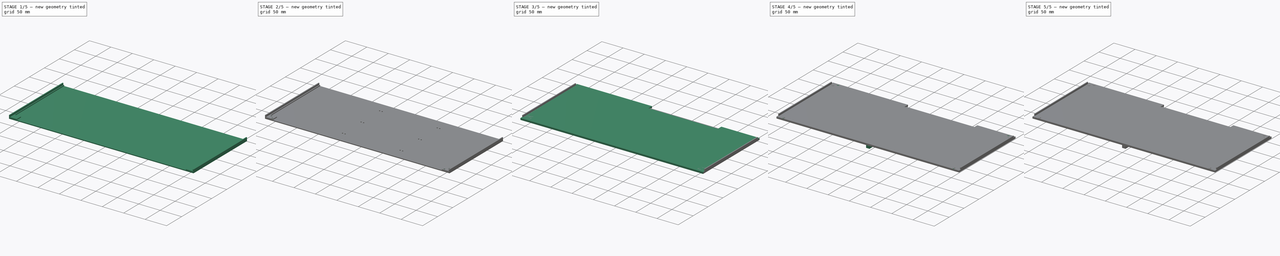
[diagram: build sequence overview — one tinted view per stage of 5, left to right]
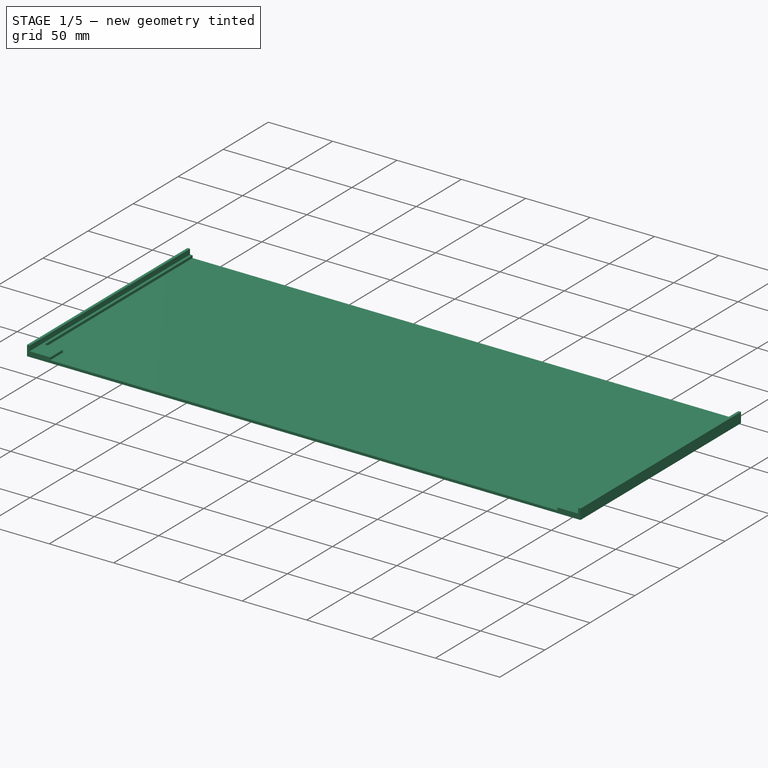
[diagram: stage 1 of 5 — iso view after this stage's code; geometry added in this stage tinted green]
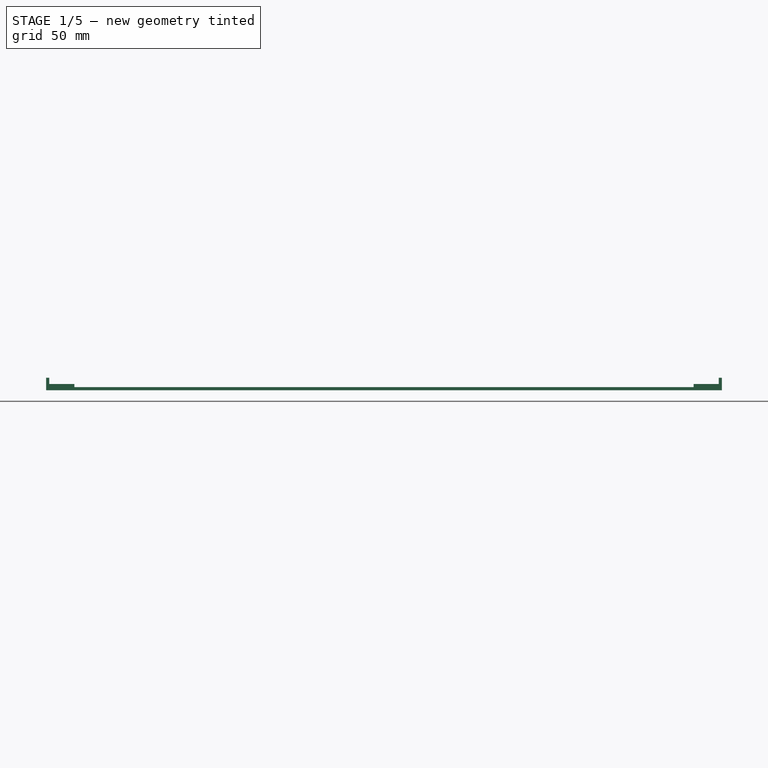
[diagram: stage 1 of 5 — front view after this stage's code; geometry added in this stage tinted green]
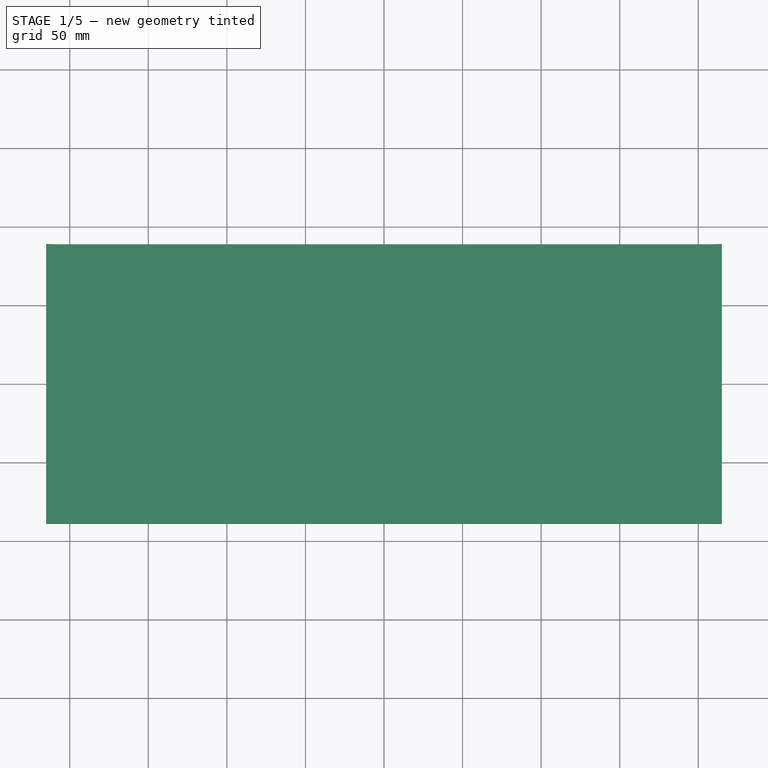
[diagram: stage 1 of 5 — top view after this stage's code; geometry added in this stage tinted green]
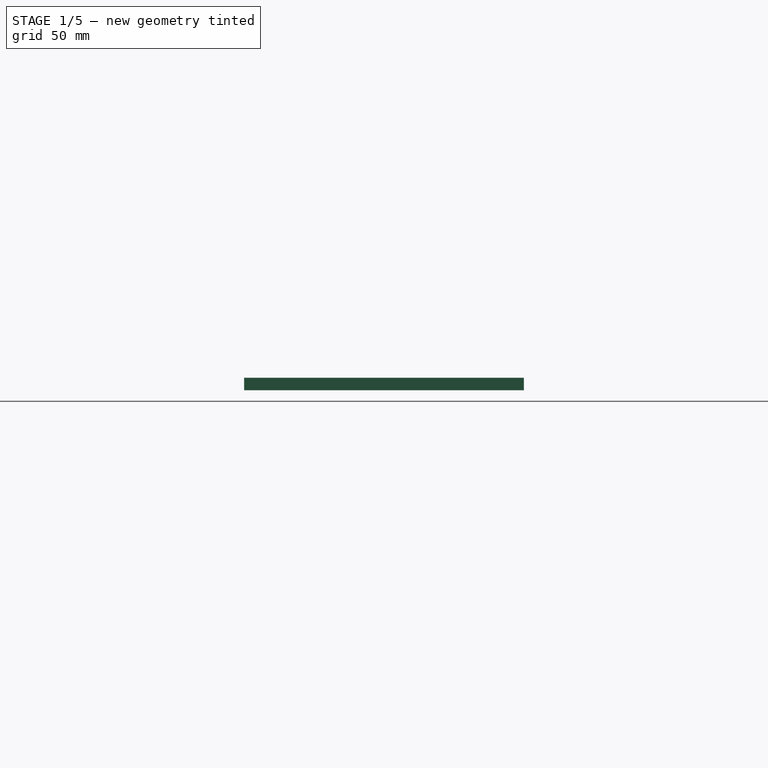
[diagram: stage 1 of 5 — right view after this stage's code; geometry added in this stage tinted green]
FCSTD DOCUMENT  (FreeCAD 1.0R39109 (Git))
Label: top
License: All rights reserved
LicenseURL: https://en.wikipedia.org/wiki/All_rights_reserved
objects: Sketcher::SketchObject×11, Part::FeaturePython×7, PartDesign::Pad×4, PartDesign::Hole×4, PartDesign::Body×2, Part::Extrusion×2, App::DocumentObjectGroup×2, PartDesign::Pocket×1
note: 60 computed .brp shape members not serialized (recipe doc carries the construction recipe); baked Part::Feature solids carry a one-line shape summary decoded from their .brp
EXTERNAL_REF file=case.FCStd obj=Spreadsheet

FEATURE [App::DocumentObjectGroup] GrExplode_Slice  label="Exploded Slice"
  Group = -> [Slice_child0,Slice_child1]
FEATURE [Sketcher::SketchObject] Sketch031
  ArcFitTolerance = 1e-06
  AttachmentSupport = -> [XY_Plane003]
  FullyConstrained = true
  MakeInternals = false
  MapMode = 5
  expr: Constraints[8] = case#Spreadsheet.width
  expr: Constraints[9] = 181 mm - case#Spreadsheet.front_wall_thickness
  sketch-geometry (4):
    g0: LineSegment StartX=-215 StartY=89 StartZ=0 EndX=-215 EndY=-89 EndZ=0
    g1: LineSegment StartX=-215 StartY=-89 StartZ=0 EndX=215 EndY=-89 EndZ=0
    g2: LineSegment StartX=215 StartY=-89 StartZ=0 EndX=215 EndY=89 EndZ=0
    g3: LineSegment StartX=215 StartY=89 StartZ=0 EndX=-215 EndY=89 EndZ=0
  constraints (11):
    c: Coincident(g0,g1)
    c: Coincident(g1,g2)
    c: Coincident(g2,g3)
    c: Coincident(g3,g0)
    c: Vertical(g0)
    c: Vertical(g2)
    c: Horizontal(g1)
    c: Horizontal(g3)
    c: DistanceX(g3,g3) = 430
    c: DistanceY(g0,g0) = 178
    c: Symmetric(g2,g0,g-1)
FEATURE [PartDesign::Pad] Pad015
  Direction = (0,0,1)
  Length = 4
  Length2 = 10
  Profile = -> Sketch031
  ReferenceAxis = -> Sketch031 [N_Axis]
  Refine = true
  Suppressed = false
  Type = 0
FEATURE [Sketcher::SketchObject] Sketch032
  ArcFitTolerance = 1e-06
  AttachmentSupport = -> [Pad015]
  ExternalGeometry = -> [Pad015]
  FullyConstrained = true
  MakeInternals = false
  MapMode = 5
  Placement = pos=(0,0,4) rot=(0,0,1;0rad)
  sketch-geometry (8):
    g0: LineSegment StartX=-215 StartY=89 StartZ=0 EndX=-215 EndY=-89 EndZ=0
    g1: LineSegment StartX=-215 StartY=-89 StartZ=0 EndX=-213 EndY=-89 EndZ=0
    g2: LineSegment StartX=-213 StartY=-89 StartZ=0 EndX=-213 EndY=89 EndZ=0
    g3: LineSegment StartX=-213 StartY=89 StartZ=0 EndX=-215 EndY=89 EndZ=0
    g4: LineSegment StartX=215 StartY=89 StartZ=0 EndX=213 EndY=89 EndZ=0
    g5: LineSegment StartX=213 StartY=89 StartZ=0 EndX=213 EndY=-89 EndZ=0
    g6: LineSegment StartX=213 StartY=-89 StartZ=0 EndX=215 EndY=-89 EndZ=0
    g7: LineSegment StartX=215 StartY=-89 StartZ=0 EndX=215 EndY=89 EndZ=0
  constraints (20):
    c: Coincident(g0,g1)
    c: Coincident(g1,g2)
    c: Coincident(g2,g3)
    c: Coincident(g3,g0)
    c: Vertical(g2)
    c: Horizontal(g1)
    c: Horizontal(g3)
    c: Coincident(g0,g-3)
    c: Coincident(g4,g5)
    c: Coincident(g5,g6)
    c: Coincident(g6,g7)
    c: Coincident(g7,g4)
    c: Horizontal(g4)
    c: Horizontal(g6)
    c: Vertical(g5)
    c: Coincident(g4,g-4)
    c: Coincident(g6,g-4)
    c: Coincident(g0,g-3)
    c: DistanceX(g1,g1) = 2
    c: DistanceX(g6,g6) = 2
FEATURE [PartDesign::Pad] Pad016
  BaseFeature = -> Pad015
  Direction = (0,0,1)
  Length = 4
  Length2 = 10
  Profile = -> Sketch032
  ReferenceAxis = -> Sketch032 [N_Axis]
  Refine = true
  Suppressed = false
  Type = 0
FEATURE [Sketcher::SketchObject] Sketch033
  ArcFitTolerance = 1e-06
  AttachmentSupport = -> [Pad016]
  ExternalGeometry = -> [Pad016]
  FullyConstrained = true
  MakeInternals = false
  MapMode = 5
  Placement = pos=(0,0,4) rot=(0,0,1;0rad)
  sketch-geometry (8):
    g0: LineSegment StartX=211 StartY=89 StartZ=0 EndX=-211 EndY=89 EndZ=0
    g1: LineSegment StartX=-211 StartY=89 StartZ=0 EndX=-211 EndY=-75 EndZ=0
    g2: LineSegment StartX=-197 StartY=-89 StartZ=0 EndX=197 EndY=-89 EndZ=0
    g3: LineSegment StartX=211 StartY=-75 StartZ=0 EndX=211 EndY=89 EndZ=0
    g4: LineSegment StartX=211 StartY=-75 StartZ=0 EndX=197 EndY=-75 EndZ=0
    g5: LineSegment StartX=197 StartY=-75 StartZ=0 EndX=197 EndY=-89 EndZ=0
    g6: LineSegment StartX=-211 StartY=-75 StartZ=0 EndX=-197 EndY=-75 EndZ=0
    g7: LineSegment StartX=-197 StartY=-75 StartZ=0 EndX=-197 EndY=-89 EndZ=0
  constraints (24):
    c: Coincident(g0,g1)
    c: Coincident(g3,g0)
    c: Horizontal(g0)
    c: Horizontal(g2)
    c: Vertical(g1)
    c: Vertical(g3)
    c: PointOnObject(g0,g-6)
    c: Horizontal(g4)
    c: Coincident(g4,g5)
    c: Vertical(g5)
    c: Horizontal(g6)
    c: Coincident(g6,g7)
    c: Vertical(g7)
    c: Equal(g4,g5)
    c: Equal(g5,g6)
    c: Equal(g6,g7)
    c: DistanceY(g7,g7) = 14
    c: Coincident(g2,g7)
    c: Coincident(g1,g6)
    c: Coincident(g2,g5)
    c: Coincident(g3,g4)
    c: PointOnObject(g2,g-5)
    c: DistanceX(g-6,g0) = 2
    c: DistanceX(g0,g-6) = 2
FEATURE [PartDesign::Pocket] Pocket004
  BaseFeature = -> Pad016
  Direction = (0,0,-1)
  Length = 2
  Length2 = 5
  Profile = -> Sketch033
  ReferenceAxis = -> Sketch033 [N_Axis]
  Refine = true
  Suppressed = false
  Type = 0
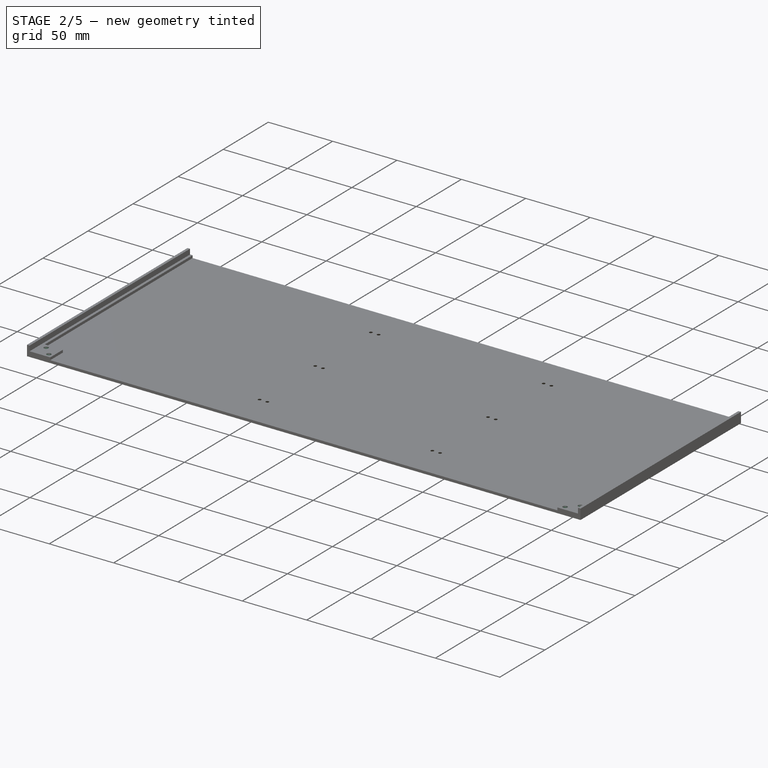
[diagram: stage 2 of 5 — iso view after this stage's code; geometry added in this stage tinted green]
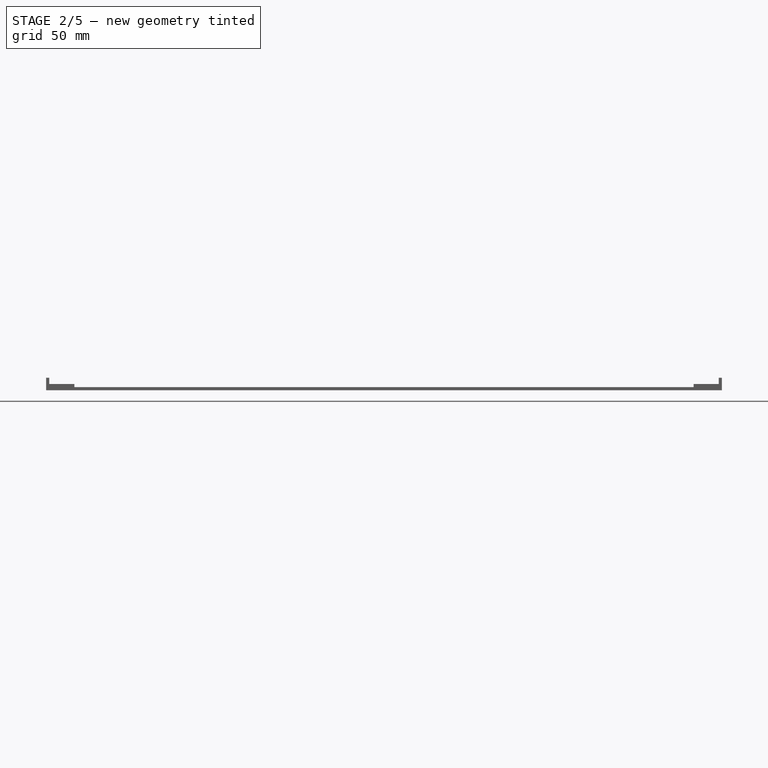
[diagram: stage 2 of 5 — front view after this stage's code; geometry added in this stage tinted green]
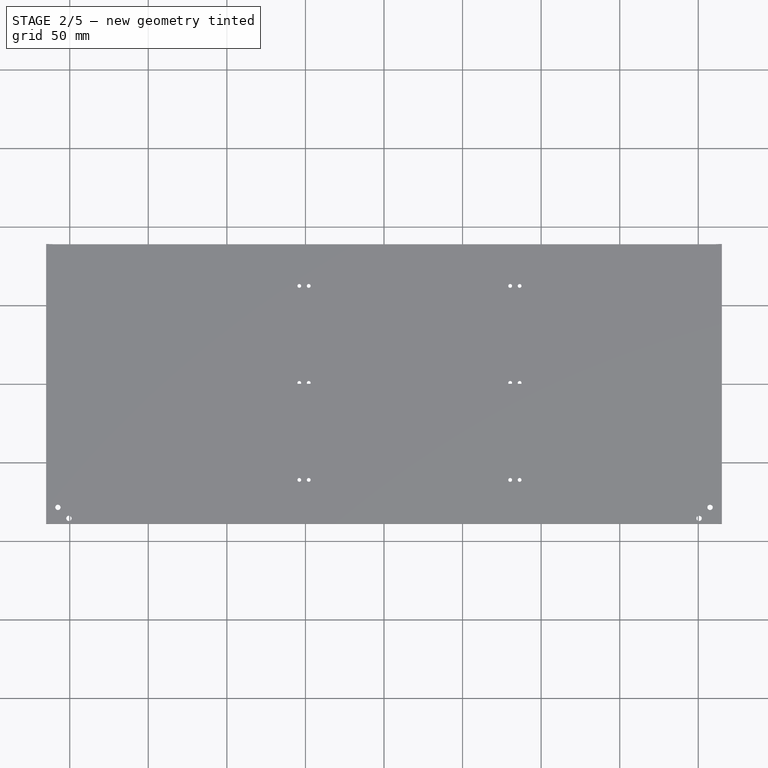
[diagram: stage 2 of 5 — top view after this stage's code; geometry added in this stage tinted green]
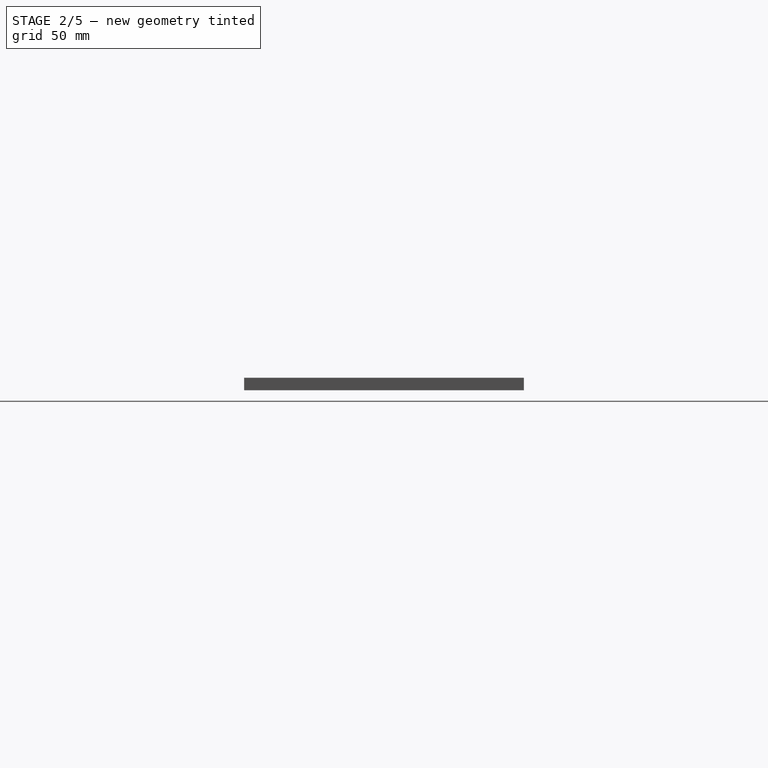
[diagram: stage 2 of 5 — right view after this stage's code; geometry added in this stage tinted green]
FEATURE [Sketcher::SketchObject] Sketch034
  ArcFitTolerance = 1e-06
  AttachmentSupport = -> [Pocket004]
  ExternalGeometry = -> [Pocket004]
  FullyConstrained = true
  MakeInternals = false
  MapMode = 5
  Placement = pos=(0,0,0) rot=(1,0,0;3.14159rad)
  sketch-geometry (14):
    g0: Circle CenterX=86.3 CenterY=-62.45 CenterZ=0 NormalX=0 NormalY=0 NormalZ=1 AngleXU=0 Radius=1
    g1: Circle CenterX=80.3 CenterY=-62.45 CenterZ=0 NormalX=0 NormalY=0 NormalZ=1 AngleXU=0 Radius=1
    g2: Circle CenterX=86.3 CenterY=-0.72 CenterZ=0 NormalX=0 NormalY=0 NormalZ=1 AngleXU=0 Radius=1
    g3: Circle CenterX=80.3 CenterY=-0.72 CenterZ=0 NormalX=0 NormalY=0 NormalZ=1 AngleXU=0 Radius=1
    g4: Circle CenterX=86.3 CenterY=61.01 CenterZ=0 NormalX=0 NormalY=0 NormalZ=1 AngleXU=0 Radius=1
    g5: Circle CenterX=80.3 CenterY=61.01 CenterZ=0 NormalX=0 NormalY=0 NormalZ=1 AngleXU=0 Radius=1
    g6: Circle CenterX=-47.9 CenterY=61.01 CenterZ=0 NormalX=0 NormalY=0 NormalZ=1 AngleXU=0 Radius=1
    g7: Circle CenterX=-53.9 CenterY=61.01 CenterZ=0 NormalX=0 NormalY=0 NormalZ=1 AngleXU=0 Radius=1
    g8: Circle CenterX=-47.9 CenterY=-0.72 CenterZ=0 NormalX=0 NormalY=0 NormalZ=1 AngleXU=0 Radius=1
    g9: Circle CenterX=-53.9 CenterY=-0.72 CenterZ=0 NormalX=0 NormalY=0 NormalZ=1 AngleXU=0 Radius=1
    g10: Circle CenterX=-47.9 CenterY=-62.45 CenterZ=0 NormalX=0 NormalY=0 NormalZ=1 AngleXU=0 Radius=1
    g11: Circle CenterX=-53.9 CenterY=-62.45 CenterZ=0 NormalX=0 NormalY=0 NormalZ=1 AngleXU=0 Radius=1
    g12: GeomPoint [constr] X=83.3 Y=61.01 Z=0
    g13: GeomPoint [constr] X=-50.9 Y=61.01 Z=0
  constraints (38):
    c: Equal(g0,g1)
    c: Equal(g1,g10)
    c: Equal(g10,g11)
    c: Equal(g11,g8)
    c: Equal(g8,g9)
    c: Equal(g9,g6)
    c: Equal(g6,g7)
    c: Equal(g7,g5)
    c: Equal(g5,g4)
    c: Equal(g4,g2)
    c: Equal(g2,g3)
    c: Diameter(g9) = 2
    c: Horizontal(g0,g1)
    c: Horizontal(g1,g10)
    c: Horizontal(g10,g11)
    c: Horizontal(g2,g3)
    c: Horizontal(g3,g8)
    c: Horizontal(g8,g9)
    c: Horizontal(g6,g7)
    c: Horizontal(g7,g5)
    c: Horizontal(g5,g4)
    c: Vertical(g0,g2)
    c: Vertical(g2,g4)
    c: Vertical(g5,g3)
    c: Vertical(g3,g1)
    c: Vertical(g10,g8)
    c: Vertical(g8,g6)
    c: Vertical(g7,g9)
    c: Vertical(g9,g11)
    c: Distance(g1,g-3) = 26.55
    c: DistanceX(g5,g4) = 6
    c: DistanceX(g7,g6) = 6
    c: DistanceY(g0,g2) = 61.73
    c: DistanceY(g2,g4) = 61.73
    c: DistanceX(g13,g12) = 134.2
    c: Symmetric(g4,g5,g12)
    c: Symmetric(g6,g7,g13)
    c: Distance(g12,g-4) = 131.7
FEATURE [PartDesign::Hole] Hole
  BaseFeature = -> Pocket004
  CustomThreadClearance = 0
  Depth = 25
  DepthType = 0
  Diameter = 2.4
  DrillForDepth = false
  DrillPoint = 0
  DrillPointAngle = 118
  HoleCutCountersinkAngle = 90
  HoleCutCustomValues = false
  HoleCutDepth = 0
  HoleCutDiameter = 6.1
  HoleCutType = 2
  ModelThread = false
  Profile = -> Sketch034
  Refine = true
  Suppressed = false
  Tapered = false
  TaperedAngle = 90
  ThreadClass = 0
  ThreadDepth = 25
  ThreadDepthType = 0
  ThreadDirection = 0
  ThreadFit = 0
  ThreadSize = 6
  ThreadType = 1
  Threaded = false
  UseCustomThreadClearance = false
FEATURE [Sketcher::SketchObject] Sketch035
  ArcFitTolerance = 1e-06
  AttachmentSupport = -> [Hole]
  ExternalGeometry = -> [Hole]
  FullyConstrained = true
  MakeInternals = false
  MapMode = 5
  Placement = pos=(0,0,0) rot=(1,0,0;3.14159rad)
  sketch-geometry (4):
    g0: Circle CenterX=-200.5 CenterY=85.5 CenterZ=0 NormalX=0 NormalY=0 NormalZ=1 AngleXU=0 Radius=1.5
    g1: Circle CenterX=-207.5 CenterY=78.5 CenterZ=0 NormalX=0 NormalY=0 NormalZ=1 AngleXU=0 Radius=1.5
    g2: Circle CenterX=200.5 CenterY=85.5 CenterZ=0 NormalX=0 NormalY=0 NormalZ=1 AngleXU=0 Radius=1.5
    g3: Circle CenterX=207.5 CenterY=78.5 CenterZ=0 NormalX=0 NormalY=0 NormalZ=1 AngleXU=0 Radius=1.5
  constraints (12):
    c: Diameter(g0) = 3
    c: Distance(g0,g-3) = 3.5
    c: DistanceX(g-4,g0) = 14.5
    c: Distance(g1,g-4) = 7.5
    c: DistanceY(g1,g-4) = 10.5
    c: Equal(g3,g2)
    c: Equal(g2,g0)
    c: Equal(g0,g1)
    c: Distance(g3,g-5) = 7.5
    c: DistanceY(g3,g-5) = 10.5
    c: DistanceX(g2,g-5) = 14.5
    c: DistanceY(g2,g-5) = 3.5
FEATURE [PartDesign::Hole] Hole006
  BaseFeature = -> Hole
  CustomThreadClearance = 0
  Depth = 25
  DepthType = 0
  Diameter = 3.4
  DrillForDepth = false
  DrillPoint = 0
  DrillPointAngle = 118
  HoleCutCountersinkAngle = 90
  HoleCutCustomValues = false
  HoleCutDepth = 0
  HoleCutDiameter = 6.1
  HoleCutType = 2
  ModelThread = false
  Profile = -> Sketch035
  Refine = true
  Suppressed = false
  Tapered = false
  TaperedAngle = 90
  ThreadClass = 0
  ThreadDepth = 25
  ThreadDepthType = 0
  ThreadDirection = 0
  ThreadFit = 0
  ThreadSize = 9
  ThreadType = 1
  Threaded = false
  UseCustomThreadClearance = false
FEATURE [Sketcher::SketchObject] Sketch036
  ArcFitTolerance = 1e-06
  AttachmentSupport = -> [Hole006]
  ExternalGeometry = -> [Hole006]
  FullyConstrained = false
  MakeInternals = false
  MapMode = 5
  Placement = pos=(0,0,0) rot=(1,0,0;3.14159rad)
  sketch-geometry (5):
    g0: GeomPoint [constr] X=83.3 Y=-0.72 Z=0
    g1: GeomPoint [constr] X=-50.9 Y=-0.72 Z=0
    g2: LineSegment StartX=-50.9 StartY=109.298 StartZ=0 EndX=-50.9 EndY=-142.569 EndZ=0
    g3: LineSegment StartX=-50.9 StartY=-142.569 StartZ=0 EndX=83.3 EndY=-142.569 EndZ=0
    g4: LineSegment StartX=83.3 StartY=-142.569 StartZ=0 EndX=83.3 EndY=113.859 EndZ=0
  constraints (9):
    c: Symmetric(g-5,g-6,g0)
    c: Symmetric(g-4,g-3,g1)
    c: Vertical(g2)
    c: Coincident(g2,g3)
    c: Horizontal(g3)
    c: Coincident(g3,g4)
    c: Vertical(g4)
    c: PointOnObject(g0,g4)
    c: PointOnObject(g1,g2)
FEATURE [PartDesign::Body] Body003  label="front"
  AllowCompound = false
  Group = -> [Sketch031,Pad015,Sketch032,Pad016,Sketch033,Pocket004,Sketch034,Hole,Sketch035,Hole006,Sketch036]
  Origin = -> Origin003
  Tip = -> Hole006
FEATURE [Part::Extrusion] Extrude001
  Base = -> Sketch036
  Dir = (0,0,-1)
  DirMode = 2
  FaceMakerClass = Part::FaceMakerBullseye
  FaceMakerMode = 3
  LengthFwd = 10
  LengthRev = 10
  Solid = false
  Symmetric = false
FEATURE [Part::FeaturePython] Slice001  # WARN: FeaturePython — macro-defined, semantics opaque (R4)
  Base = -> Hole006
  Mode = 1
  Tolerance = 0
  Tools = -> [Extrude001]
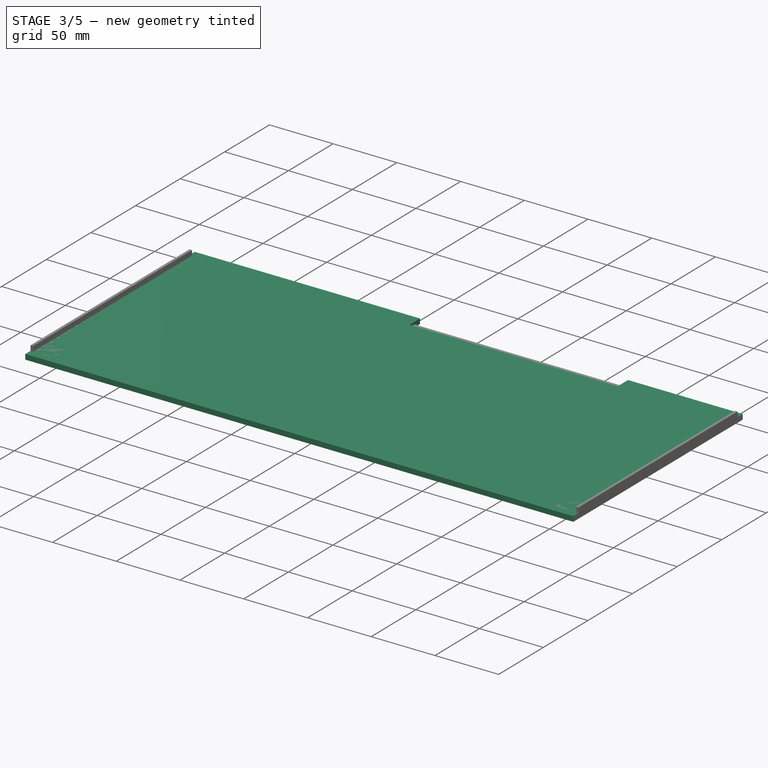
[diagram: stage 3 of 5 — iso view after this stage's code; geometry added in this stage tinted green]
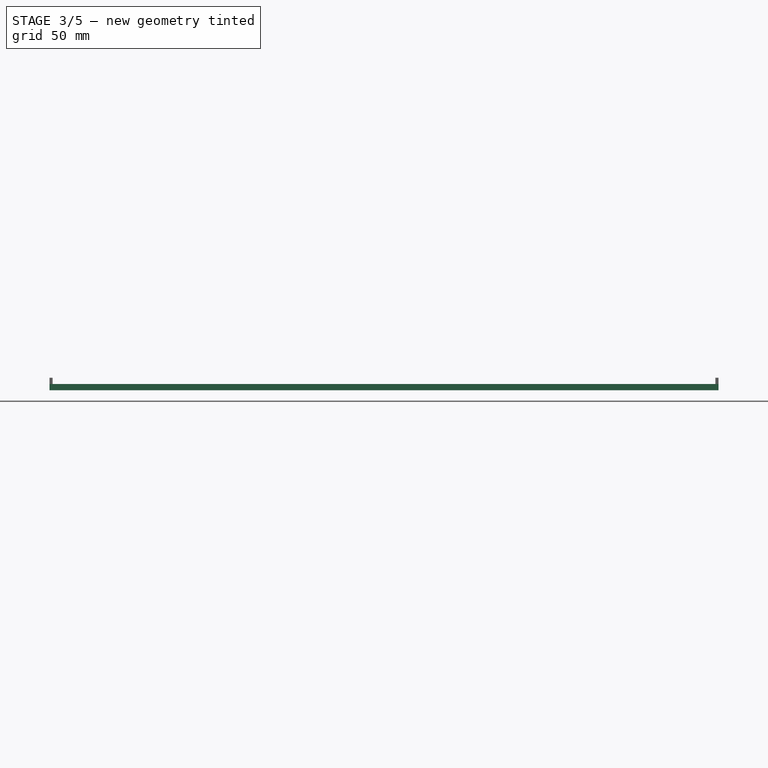
[diagram: stage 3 of 5 — front view after this stage's code; geometry added in this stage tinted green]
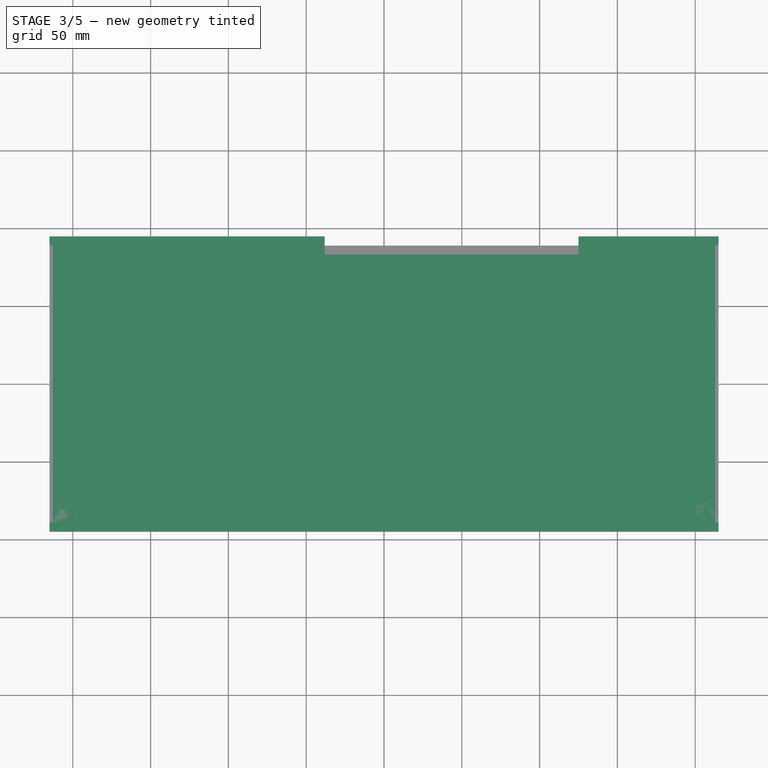
[diagram: stage 3 of 5 — top view after this stage's code; geometry added in this stage tinted green]
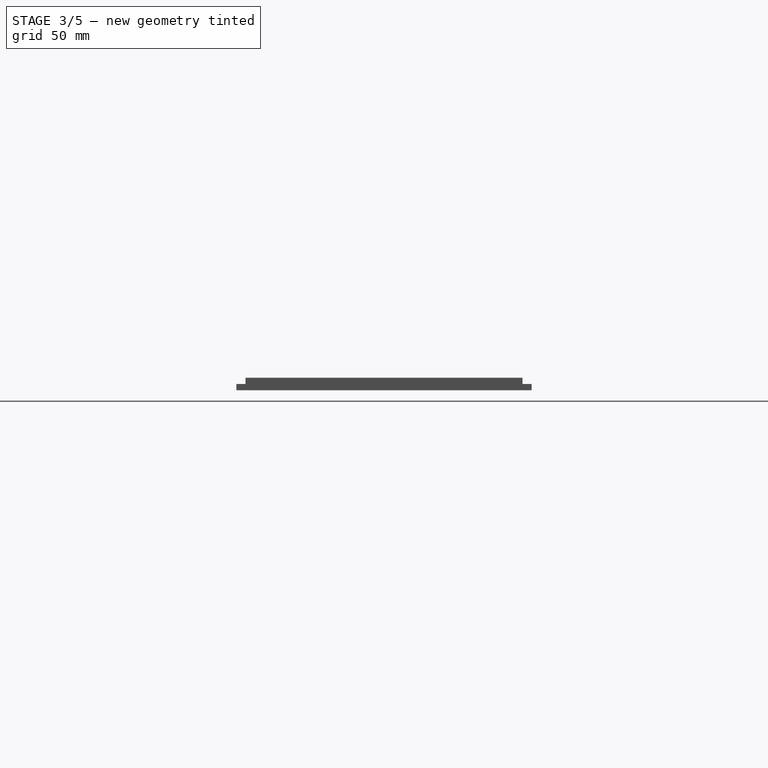
[diagram: stage 3 of 5 — right view after this stage's code; geometry added in this stage tinted green]
FEATURE [Sketcher::SketchObject] Sketch
  ArcFitTolerance = 1e-06
  AttachmentSupport = -> [XY_Plane]
  FullyConstrained = true
  MakeInternals = false
  MapMode = 5
  expr: Constraints[20] = case#Spreadsheet.depth - case#Spreadsheet.wall_thickness - case#Spreadsheet.front_wall_thickness - 178 mm - 0.2 mm
  expr: Constraints[22] = case#Spreadsheet.pcie_tab_depth + 0.2 mm
  expr: Constraints[6] = case#Spreadsheet.width
  sketch-geometry (8):
    g0: LineSegment StartX=-215 StartY=-94.9 StartZ=0 EndX=215 EndY=-94.9 EndZ=0
    g1: LineSegment StartX=215 StartY=-94.9 StartZ=0 EndX=215 EndY=94.9 EndZ=0
    g2: LineSegment StartX=-38.2 StartY=83.27 StartZ=0 EndX=-38.2 EndY=94.9 EndZ=0
    g3: LineSegment StartX=-38.2 StartY=94.9 StartZ=0 EndX=-215 EndY=94.9 EndZ=0
    g4: LineSegment StartX=-215 StartY=94.9 StartZ=0 EndX=-215 EndY=-94.9 EndZ=0
    g5: LineSegment StartX=-38.2 StartY=83.27 StartZ=0 EndX=125 EndY=83.27 EndZ=0
    g6: LineSegment StartX=125 StartY=83.27 StartZ=0 EndX=125 EndY=94.9 EndZ=0
    g7: LineSegment StartX=125 StartY=94.9 StartZ=0 EndX=215 EndY=94.9 EndZ=0
  constraints (23):
    c: Horizontal(g0)
    c: Coincident(g0,g1)
    c: Vertical(g1)
    c: Coincident(g2,g3)
    c: Coincident(g3,g4)
    c: Coincident(g4,g0)
    c: DistanceX(g0,g0) = 430
    c: Coincident(g2,g5)
    c: Horizontal(g5)
    c: Coincident(g5,g6)
    c: Vertical(g6)
    c: Coincident(g6,g7)
    c: Horizontal(g7)
    c: Coincident(g1,g7)
    c: Vertical(g4)
    c: Horizontal(g3)
    c: Vertical(g2)
    c: DistanceX(g7,g7) = 90
    c: DistanceX(g3,g3) = 176.8
    c: Horizontal(g2,g6)
    c: DistanceY(g4,g4) = 189.8
    c: Symmetric(g1,g0,g-1)
    c: Distance(g6,g6) = 11.63
FEATURE [PartDesign::Pad] Pad
  Direction = (0,0,1)
  Length = 4
  Length2 = 10
  Profile = -> Sketch
  ReferenceAxis = -> Sketch [N_Axis]
  Refine = true
  Suppressed = false
  Type = 0
  expr: Length = case#Spreadsheet.wall_thickness
FEATURE [Part::FeaturePython] Slice001_child0  label="Slice001.0"  # WARN: FeaturePython — macro-defined, semantics opaque (R4)
  Base = -> Slice001
  FilterType = 1
  Invert = false
  OverrideMaxVal = 0
  WindowFrom = 80
  WindowTo = 100
  items = 0
FEATURE [Part::FeaturePython] Slice001_child1  label="Slice001.1"  # WARN: FeaturePython — macro-defined, semantics opaque (R4)
  Base = -> Slice001
  FilterType = 1
  Invert = false
  OverrideMaxVal = 0
  WindowFrom = 80
  WindowTo = 100
  items = 1
FEATURE [Part::FeaturePython] Slice001_child2  label="Slice001.2"  # WARN: FeaturePython — macro-defined, semantics opaque (R4)
  Base = -> Slice001
  FilterType = 1
  Invert = false
  OverrideMaxVal = 0
  WindowFrom = 80
  WindowTo = 100
  items = 2
FEATURE [App::DocumentObjectGroup] GrExplode_Slice001  label="Exploded Slice001"
  Group = -> [Slice001_child0,Slice001_child1,Slice001_child2]
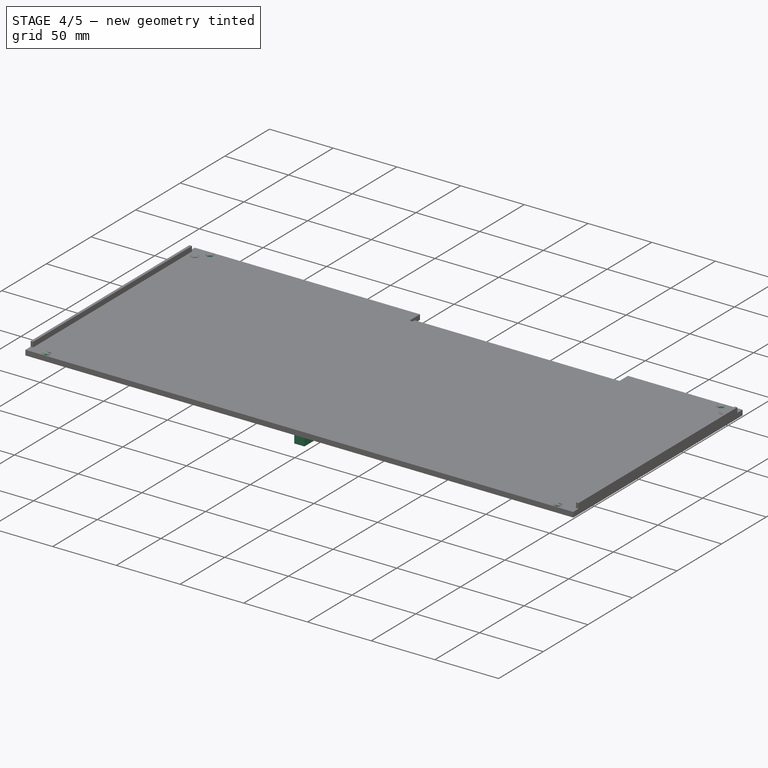
[diagram: stage 4 of 5 — iso view after this stage's code; geometry added in this stage tinted green]
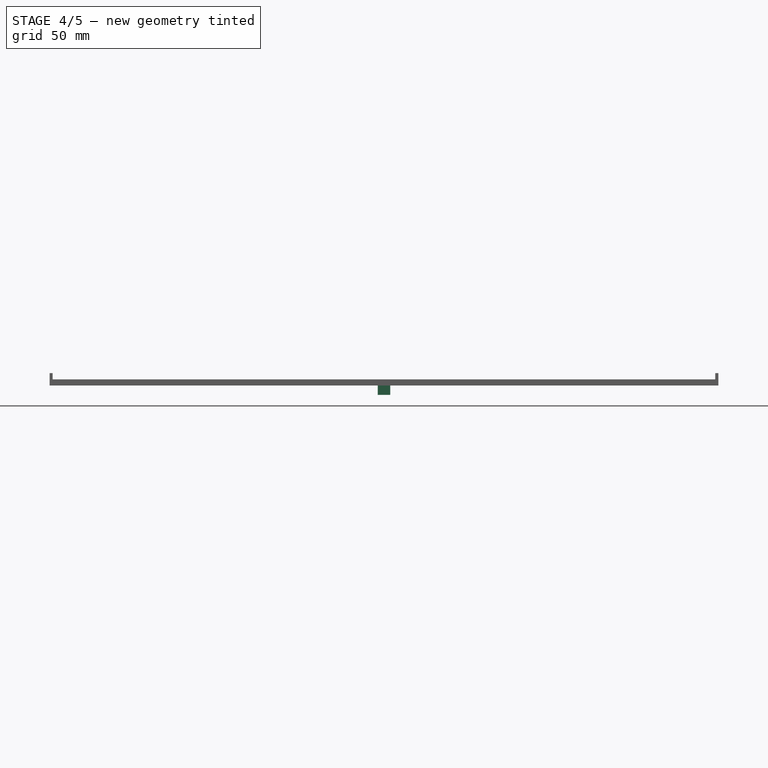
[diagram: stage 4 of 5 — front view after this stage's code; geometry added in this stage tinted green]
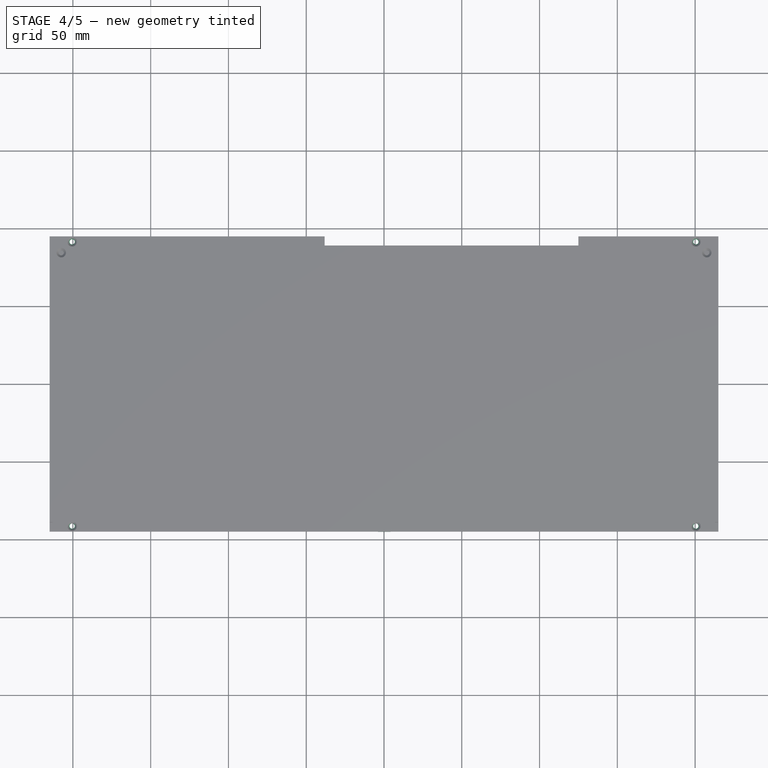
[diagram: stage 4 of 5 — top view after this stage's code; geometry added in this stage tinted green]
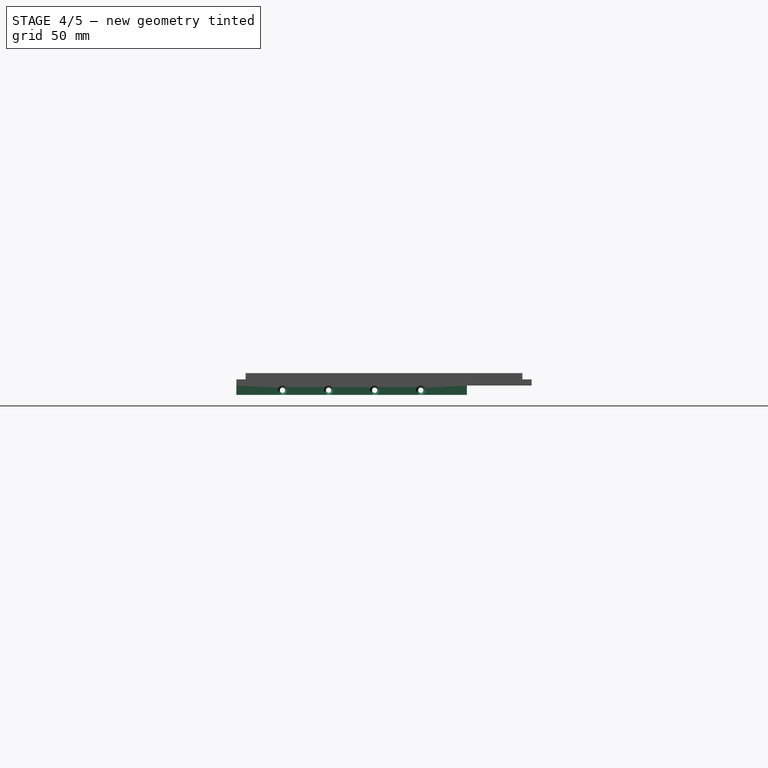
[diagram: stage 4 of 5 — right view after this stage's code; geometry added in this stage tinted green]
FEATURE [Sketcher::SketchObject] Sketch027
  ArcFitTolerance = 1e-06
  AttachmentSupport = -> [Pad]
  ExternalGeometry = -> [Pad]
  FullyConstrained = true
  MakeInternals = false
  MapMode = 5
  Placement = pos=(0,0,4) rot=(0,0,1;0rad)
  sketch-geometry (5):
    g0: LineSegment StartX=4 StartY=53.27 StartZ=0 EndX=4 EndY=-94.9 EndZ=0
    g1: LineSegment StartX=4 StartY=-94.9 StartZ=0 EndX=-4 EndY=-94.9 EndZ=0
    g2: LineSegment StartX=-4 StartY=-94.9 StartZ=0 EndX=-4 EndY=53.27 EndZ=0
    g3: LineSegment StartX=-4 StartY=53.27 StartZ=0 EndX=4 EndY=53.27 EndZ=0
    g4: GeomPoint [constr] X=0 Y=53.27 Z=0
  constraints (13):
    c: Coincident(g0,g1)
    c: Coincident(g1,g2)
    c: Coincident(g2,g3)
    c: Coincident(g3,g0)
    c: Vertical(g0)
    c: Vertical(g2)
    c: Horizontal(g1)
    c: Horizontal(g3)
    c: Symmetric(g3,g3,g4)
    c: DistanceX(g-3,g4) = 215
    c: PointOnObject(g1,g-5)
    c: DistanceY(g2,g-4) = 30
    c: Distance(g1,g1) = 8
FEATURE [PartDesign::Pad] Pad014
  BaseFeature = -> Pad
  Direction = (0,0,1)
  Length = 10
  Length2 = 10
  Profile = -> Sketch027
  ReferenceAxis = -> Sketch027 [N_Axis]
  Refine = true
  Reversed = true
  Suppressed = false
  Type = 0
FEATURE [Sketcher::SketchObject] Sketch028
  ArcFitTolerance = 1e-06
  AttachmentSupport = -> [Pad014]
  ExternalGeometry = -> [Pad014]
  FullyConstrained = true
  MakeInternals = false
  MapMode = 5
  Placement = pos=(4,0,0) rot=(0.57735,0.57735,0.57735;2.0944rad)
  sketch-geometry (11):
    g0: GeomPoint [constr] X=53.27 Y=-3 Z=0
    g1: GeomPoint [constr] X=-94.9 Y=-3 Z=0
    g2: Circle CenterX=-65.266 CenterY=-3 CenterZ=0 NormalX=0 NormalY=0 NormalZ=1 AngleXU=0 Radius=1.5
    g3: Circle CenterX=-5.998 CenterY=-3 CenterZ=0 NormalX=0 NormalY=0 NormalZ=1 AngleXU=0 Radius=1.5
    g4: Circle CenterX=23.636 CenterY=-3 CenterZ=0 NormalX=0 NormalY=0 NormalZ=1 AngleXU=0 Radius=1.5
    g5: Circle CenterX=-35.632 CenterY=-3 CenterZ=0 NormalX=0 NormalY=0 NormalZ=1 AngleXU=0 Radius=1.5
    g6: LineSegment [constr] StartX=53.27 StartY=-3 StartZ=0 EndX=23.636 EndY=-3 EndZ=0
    g7: LineSegment [constr] StartX=23.636 StartY=-3 StartZ=0 EndX=-5.998 EndY=-3 EndZ=0
    g8: LineSegment [constr] StartX=-5.998 StartY=-3 StartZ=0 EndX=-35.632 EndY=-3 EndZ=0
    g9: LineSegment [constr] StartX=-35.632 StartY=-3 StartZ=0 EndX=-65.266 EndY=-3 EndZ=0
    g10: LineSegment [constr] StartX=-65.266 StartY=-3 StartZ=0 EndX=-94.9 EndY=-3 EndZ=0
  constraints (24):
    c: Symmetric(g-4,g-4,g0)
    c: Symmetric(g-3,g-3,g1)
    c: Diameter(g3) = 3
    c: Equal(g2,g5)
    c: Equal(g5,g3)
    c: Equal(g3,g4)
    c: Coincident(g6,g0)
    c: Coincident(g6,g4)
    c: Horizontal(g6)
    c: Coincident(g6,g7)
    c: Coincident(g7,g3)
    c: Horizontal(g7)
    c: Coincident(g7,g8)
    c: Coincident(g8,g5)
    c: Coincident(g8,g9)
    c: Coincident(g9,g2)
    c: Coincident(g9,g10)
    c: Coincident(g10,g1)
    c: Horizontal(g10)
    c: Equal(g9,g8)
    c: Equal(g8,g7)
    c: Equal(g7,g6)
    c: Equal(g6,g10)
    c: Horizontal(g9)
FEATURE [PartDesign::Hole] Hole004
  BaseFeature = -> Pad014
  CustomThreadClearance = 0
  Depth = 8
  DepthType = 0
  Diameter = 3.4
  DrillForDepth = false
  DrillPoint = 0
  DrillPointAngle = 118
  HoleCutCountersinkAngle = 90
  HoleCutCustomValues = false
  HoleCutDepth = 0
  HoleCutDiameter = 6.1
  HoleCutType = 2
  ModelThread = false
  Profile = -> Sketch028
  Refine = true
  Suppressed = false
  Tapered = false
  TaperedAngle = 90
  ThreadClass = 0
  ThreadDepth = 8
  ThreadDepthType = 0
  ThreadDirection = 0
  ThreadFit = 0
  ThreadSize = 9
  ThreadType = 1
  Threaded = false
  UseCustomThreadClearance = false
FEATURE [Sketcher::SketchObject] Sketch030
  ArcFitTolerance = 1e-06
  AttachmentSupport = -> [Hole004]
  ExternalGeometry = -> [Hole004]
  FullyConstrained = true
  MakeInternals = false
  MapMode = 5
  Placement = pos=(0,0,4) rot=(0,0,1;0rad)
  sketch-geometry (8):
    g0: Circle CenterX=200.5 CenterY=91.4 CenterZ=0 NormalX=0 NormalY=0 NormalZ=1 AngleXU=0 Radius=1.5
    g1: Circle CenterX=207.5 CenterY=84.4 CenterZ=0 NormalX=0 NormalY=0 NormalZ=1 AngleXU=0 Radius=1.5
    g2: Circle CenterX=207.5 CenterY=-84.4 CenterZ=0 NormalX=0 NormalY=0 NormalZ=1 AngleXU=0 Radius=1.5
    g3: Circle CenterX=200.5 CenterY=-91.4 CenterZ=0 NormalX=0 NormalY=0 NormalZ=1 AngleXU=0 Radius=1.5
    g4: Circle CenterX=-200.5 CenterY=-91.4 CenterZ=0 NormalX=0 NormalY=0 NormalZ=1 AngleXU=0 Radius=1.5
    g5: Circle CenterX=-207.5 CenterY=-84.4 CenterZ=0 NormalX=0 NormalY=0 NormalZ=1 AngleXU=0 Radius=1.5
    g6: Circle CenterX=-200.5 CenterY=91.4 CenterZ=0 NormalX=0 NormalY=0 NormalZ=1 AngleXU=0 Radius=1.5
    g7: Circle CenterX=-207.5 CenterY=84.4 CenterZ=0 NormalX=0 NormalY=0 NormalZ=1 AngleXU=0 Radius=1.5
  constraints (24):
    c: DistanceY(g0,g-3) = 3.5
    c: Distance(g1,g-4) = 7.5
    c: DistanceY(g1,g-4) = 10.5
    c: DistanceX(g0,g-4) = 14.5
    c: Distance(g2,g-4) = 7.5
    c: Distance(g5,g-6) = 7.5
    c: DistanceY(g-5,g2) = 10.5
    c: DistanceY(g-6,g5) = 10.5
    c: DistanceX(g3,g-5) = 14.5
    c: DistanceX(g-6,g4) = 14.5
    c: Distance(g3,g-5) = 3.5
    c: Distance(g4,g-5) = 3.5
    c: Distance(g6,g-7) = 3.5
    c: DistanceX(g-7,g6) = 14.5
    c: Distance(g7,g-6) = 7.5
    c: DistanceY(g7,g-7) = 10.5
    c: Diameter(g1) = 3
    c: Equal(g1,g0)
    c: Equal(g0,g3)
    c: Equal(g3,g2)
    c: Equal(g2,g4)
    c: Equal(g4,g5)
    c: Equal(g5,g6)
    c: Equal(g6,g7)
FEATURE [PartDesign::Hole] Hole005
  BaseFeature = -> Hole004
  CustomThreadClearance = 0
  Depth = 4
  DepthType = 0
  Diameter = 3.4
  DrillForDepth = false
  DrillPoint = 0
  DrillPointAngle = 118
  HoleCutCountersinkAngle = 90
  HoleCutCustomValues = false
  HoleCutDepth = 0
  HoleCutDiameter = 6.1
  HoleCutType = 2
  ModelThread = false
  Profile = -> Sketch030
  Refine = true
  Suppressed = false
  Tapered = false
  TaperedAngle = 90
  ThreadClass = 0
  ThreadDepth = 4
  ThreadDepthType = 0
  ThreadDirection = 0
  ThreadFit = 0
  ThreadSize = 9
  ThreadType = 1
  Threaded = false
  UseCustomThreadClearance = false
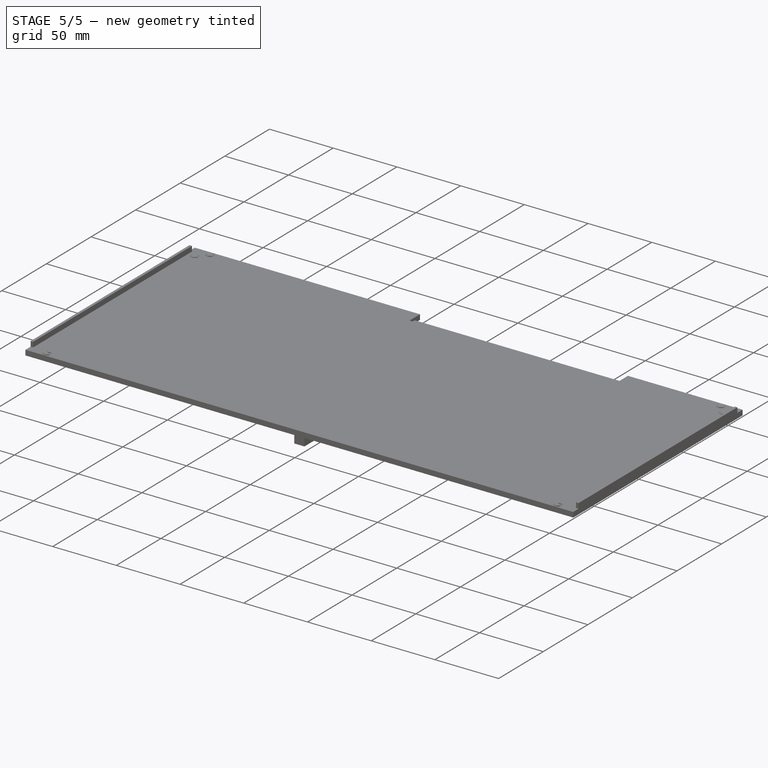
[diagram: stage 5 of 5 — iso view after this stage's code; geometry added in this stage tinted green]
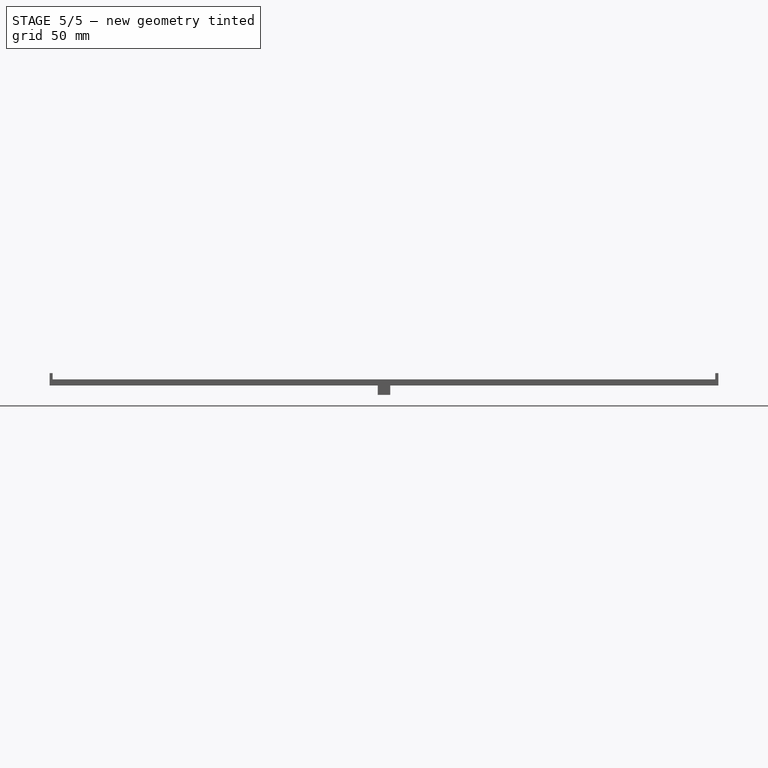
[diagram: stage 5 of 5 — front view after this stage's code; geometry added in this stage tinted green]
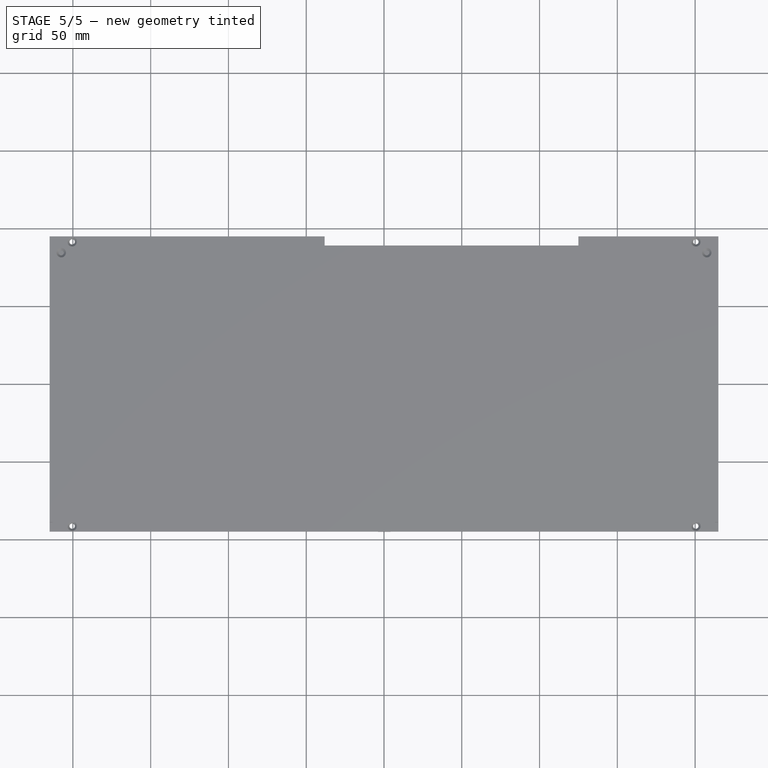
[diagram: stage 5 of 5 — top view after this stage's code; geometry added in this stage tinted green]
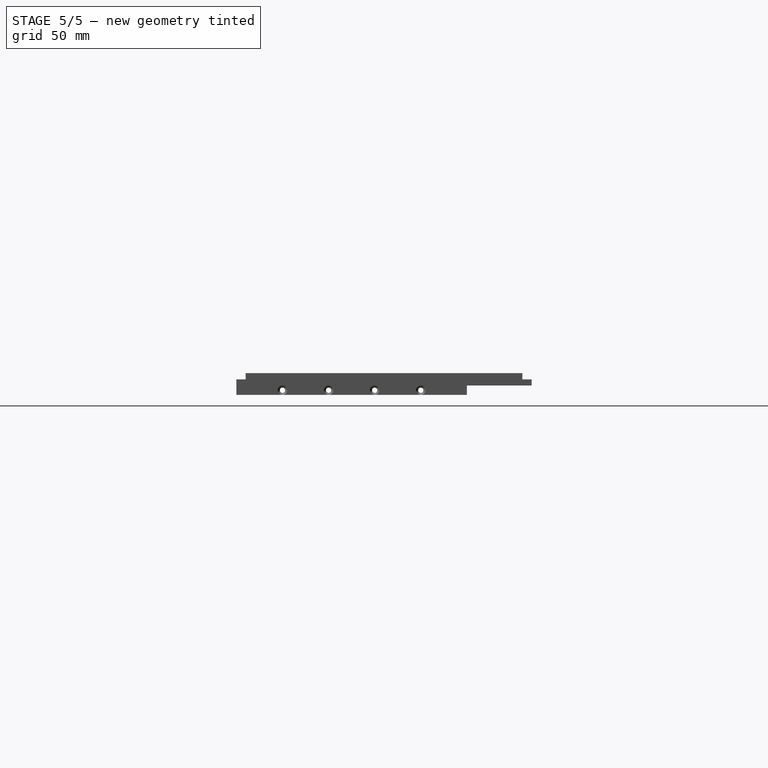
[diagram: stage 5 of 5 — right view after this stage's code; geometry added in this stage tinted green]
FEATURE [Sketcher::SketchObject] Sketch029  label="split"
  ArcFitTolerance = 1e-06
  AttachmentSupport = -> [Hole004]
  ExternalGeometry = -> [Hole004]
  FullyConstrained = false
  MakeInternals = false
  MapMode = 5
  Placement = pos=(0,0,-6) rot=(1,0,0;3.14159rad)
  sketch-geometry (2):
    g0: GeomPoint [constr] X=2e-16 Y=94.9 Z=0
    g1: LineSegment StartX=2e-16 StartY=94.9 StartZ=0 EndX=2e-16 EndY=-87.6692 EndZ=0
  constraints (3):
    c: Symmetric(g-4,g-4,g0)
    c: Vertical(g1)
    c: Coincident(g1,g0)
FEATURE [PartDesign::Body] Body  label="rear"
  AllowCompound = false
  Group = -> [Sketch,Pad,Sketch027,Pad014,Sketch028,Hole004,Sketch030,Hole005,Sketch029]
  Origin = -> Origin
  Placement = pos=(0,200,0) rot=(0,0,1;0rad)
  Tip = -> Hole005
FEATURE [Part::Extrusion] Extrude
  Base = -> Sketch029
  Dir = (0,0,-1)
  DirMode = 2
  FaceMakerClass = Part::FaceMakerBullseye
  FaceMakerMode = 3
  LengthFwd = 20
  LengthRev = 20
  Solid = false
  Symmetric = false
FEATURE [Part::FeaturePython] Slice  # WARN: FeaturePython — macro-defined, semantics opaque (R4)
  Base = -> Hole005
  Mode = 1
  Tolerance = 0
  Tools = -> [Extrude]
FEATURE [Part::FeaturePython] Slice_child0  label="Slice.0"  # WARN: FeaturePython — macro-defined, semantics opaque (R4)
  Base = -> Slice
  FilterType = 1
  Invert = false
  OverrideMaxVal = 0
  WindowFrom = 80
  WindowTo = 100
  items = 0
FEATURE [Part::FeaturePython] Slice_child1  label="Slice.1"  # WARN: FeaturePython — macro-defined, semantics opaque (R4)
  Base = -> Slice
  FilterType = 1
  Invert = false
  OverrideMaxVal = 0
  WindowFrom = 80
  WindowTo = 100
  items = 1
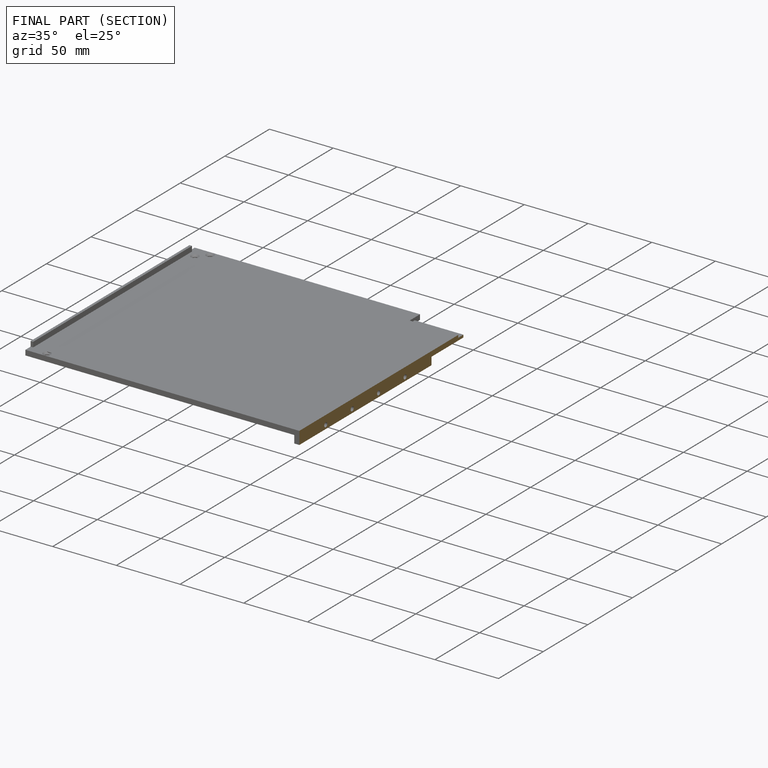
[diagram: finished part — half-section view (interior)]
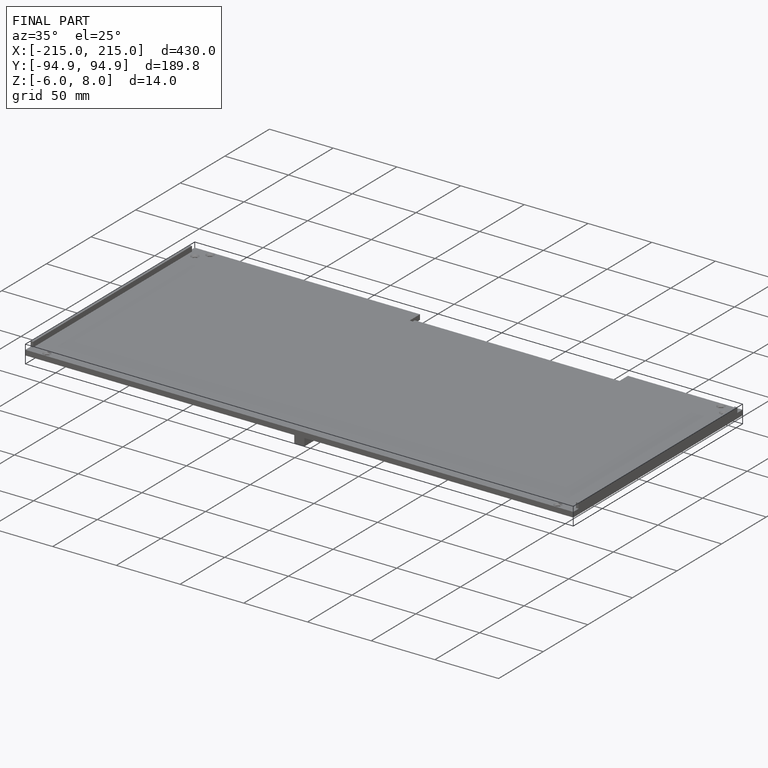
[diagram: finished part — iso view with bounding-box wireframe]
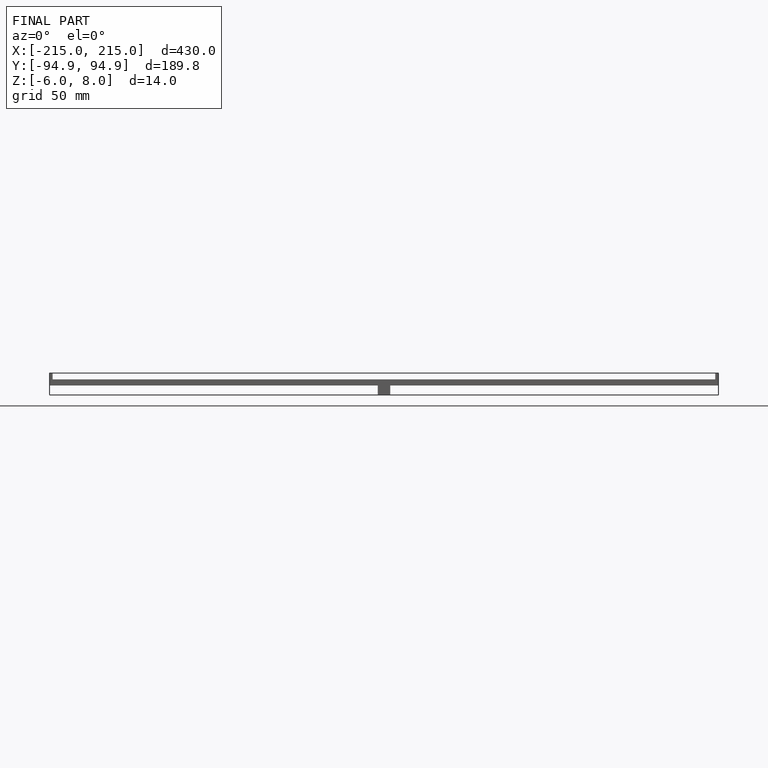
[diagram: finished part — front view with bounding-box wireframe]
